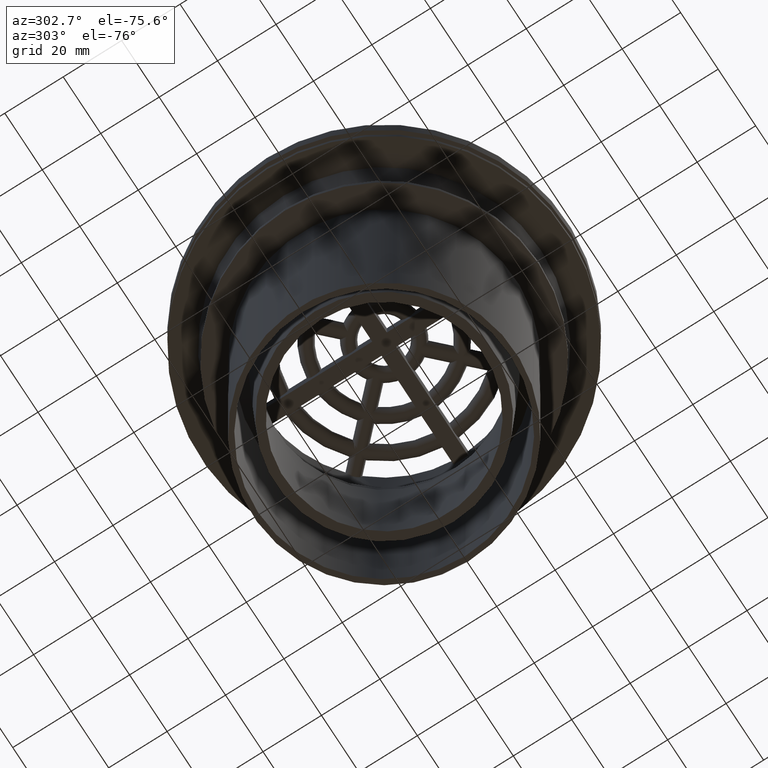
[diagram: clean part render]
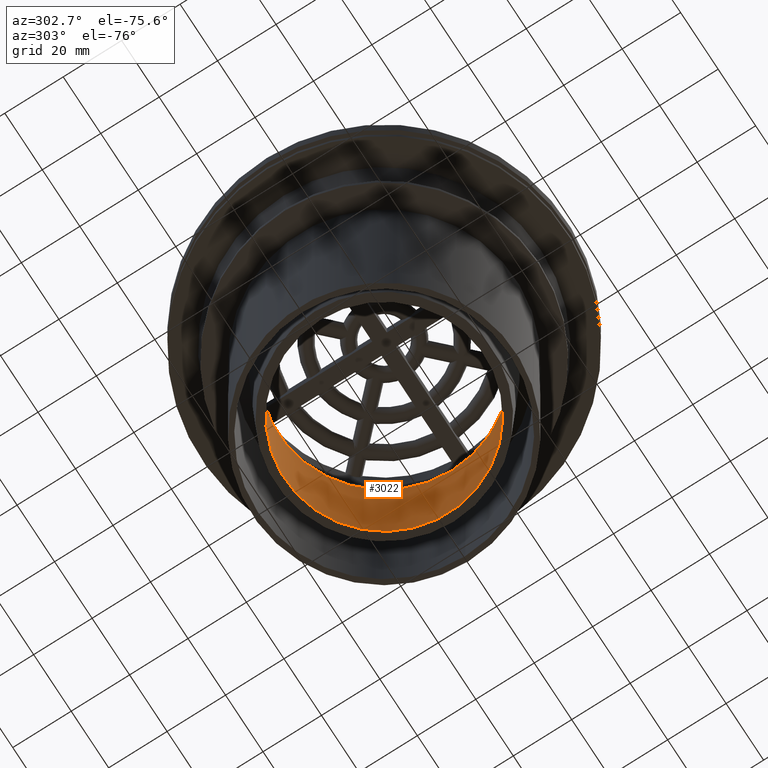
[diagram: same view with one face highlighted and labeled with its STEP entity id]
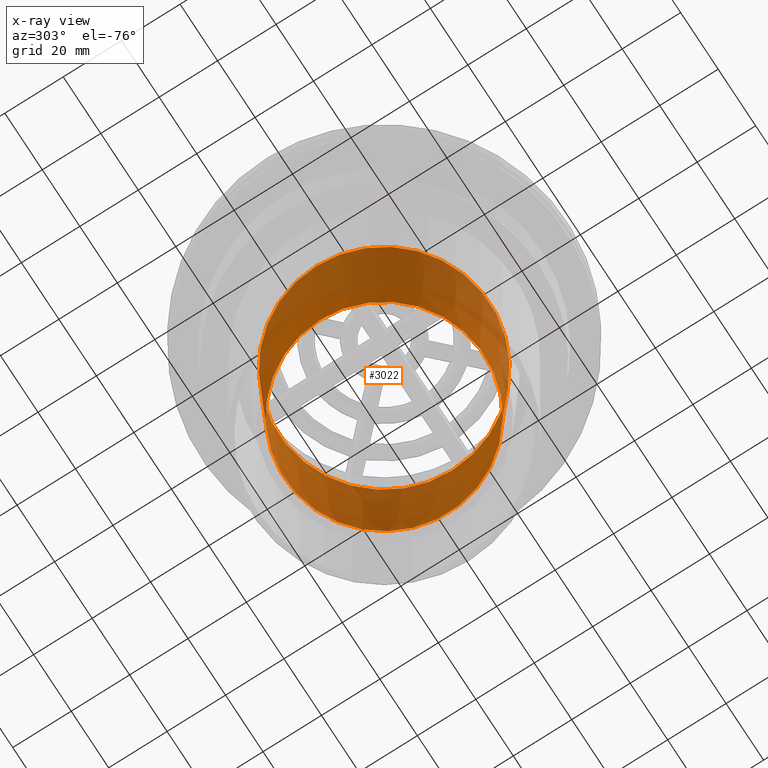
[diagram: x-ray of the same camera — body ghosted, the highlighted face saturated]
A machine part, auxiliary view. The second image highlights one B-rep face of the part: STEP entity #3022.
The next image is the same camera in x-ray: the body ghosted, the highlighted face saturated — about 40% of this face is hidden behind the body in this view.
In plain terms, the highlighted conical surface has half-angle 2.045 deg.
Its self-contained STEP definition (entity closure, byte-faithful):
#20=CONICAL_SURFACE('',#3360,36.141,0.0356991126793241);
#1454=ORIENTED_EDGE('',*,*,#1907,.T.);
#1455=ORIENTED_EDGE('',*,*,#1906,.F.);
#1906=EDGE_CURVE('',#2207,#2207,#2376,.T.);
#1907=EDGE_CURVE('',#2208,#2208,#2377,.T.);
#2207=VERTEX_POINT('',#5441);
#2208=VERTEX_POINT('',#5444);
#2376=CIRCLE('',#3359,36.141);
#2377=CIRCLE('',#3361,34.141);
#2591=EDGE_LOOP('',(#1454));
#2592=EDGE_LOOP('',(#1455));
#2819=FACE_BOUND('',#2591,.T.);
#2820=FACE_BOUND('',#2592,.T.);
#3022=ADVANCED_FACE('',(#2819,#2820),#20,.F.);
#3359=AXIS2_PLACEMENT_3D('',#5440,#4164,#4165);
#3360=AXIS2_PLACEMENT_3D('',#5442,#4166,#4167);
#3361=AXIS2_PLACEMENT_3D('',#5443,#4168,#4169);
#4164=DIRECTION('',(0.,0.,-1.));
#4165=DIRECTION('',(-1.,0.,0.));
#4166=DIRECTION('',(0.,0.,1.));
#4167=DIRECTION('',(1.,0.,0.));
#4168=DIRECTION('',(0.,0.,-1.));
#4169=DIRECTION('',(-1.,0.,0.));
#5440=CARTESIAN_POINT('',(0.,0.,-39.));
#5441=CARTESIAN_POINT('',(-36.141,0.,-39.));
#5442=CARTESIAN_POINT('',(0.,0.,-39.));
#5443=CARTESIAN_POINT('',(0.,0.,-95.));
#5444=CARTESIAN_POINT('',(-34.141,0.,-95.));